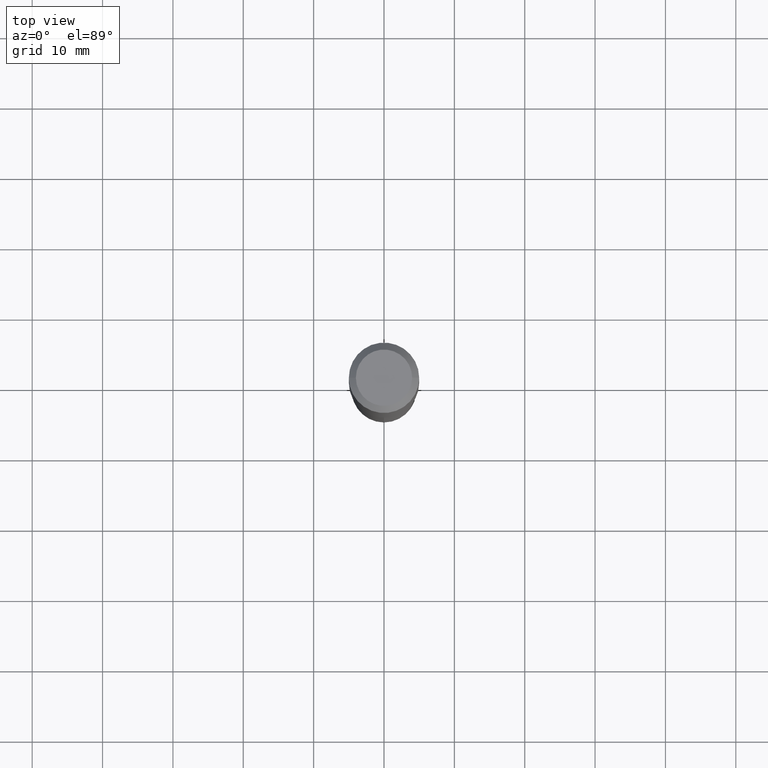
[diagram: clean part render]
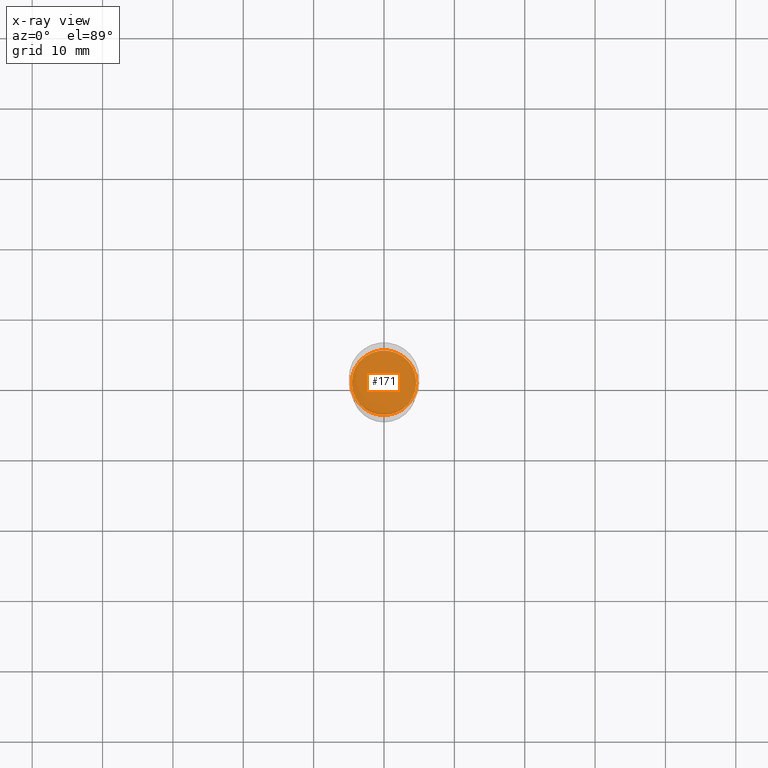
[diagram: x-ray — body ghosted, one internal face saturated and labeled with its STEP entity id]
A machine part, top view, then the same camera in x-ray: the body is ghosted and one INTERNAL B-rep face — a face not visible from any outside direction — is saturated and labeled: STEP entity #171.
In plain terms, the highlighted planar face has unit normal (-0, 0, 1).
Its self-contained STEP definition (entity closure, byte-faithful):
#37 = CARTESIAN_POINT ( 'NONE',  ( 4.043338124146504977E-29, -5.772815245643255982E-15, -1.653399999999999981 ) ) ;
#63 = DIRECTION ( 'NONE',  ( -2.445468806185136597E-29, 3.491481338843145583E-15, 1.000000000000000000 ) ) ;
#106 = AXIS2_PLACEMENT_3D ( 'NONE', #382, #199, #459 ) ;
#113 = EDGE_LOOP ( 'NONE', ( #150, #471 ) ) ;
#114 = CARTESIAN_POINT ( 'NONE',  ( -0.1806000000000000105, -4.486925837686404757E-15, -1.653399999999999981 ) ) ;
#122 = EDGE_CURVE ( 'NONE', #220, #413, #439, .T. ) ;
#140 = DIRECTION ( 'NONE',  ( -2.438088387897960049E-29, 3.491481338843145188E-15, 1.000000000000000000 ) ) ;
#150 = ORIENTED_EDGE ( 'NONE', *, *, #122, .F. ) ;
#171 = ADVANCED_FACE ( 'NONE', ( #376 ), #227, .F. ) ;
#174 = AXIS2_PLACEMENT_3D ( 'NONE', #295, #140, #186 ) ;
#177 = EDGE_CURVE ( 'NONE', #413, #220, #219, .T. ) ;
#186 = DIRECTION ( 'NONE',  ( 1.000000000000000000, -6.982962677686265922E-15, 4.876176775795935793E-29 ) ) ;
#199 = DIRECTION ( 'NONE',  ( -2.445468806185136597E-29, 3.491481338843145583E-15, 1.000000000000000000 ) ) ;
#219 = CIRCLE ( 'NONE', #484, 0.1806000000000000105 ) ;
#220 = VERTEX_POINT ( 'NONE', #489 ) ;
#227 = PLANE ( 'NONE',  #174 ) ;
#258 = DIRECTION ( 'NONE',  ( 1.000000000000000000, -6.982962677686263555E-15, 0.000000000000000000 ) ) ;
#295 = CARTESIAN_POINT ( 'NONE',  ( 2.296886989417275396E-29, -8.273832672401003968E-15, -1.653399999999999981 ) ) ;
#376 = FACE_OUTER_BOUND ( 'NONE', #113, .T. ) ;
#382 = CARTESIAN_POINT ( 'NONE',  ( 4.043338124146504977E-29, -5.772815245643255982E-15, -1.653399999999999981 ) ) ;
#413 = VERTEX_POINT ( 'NONE', #114 ) ;
#439 = CIRCLE ( 'NONE', #106, 0.1806000000000000105 ) ;
#459 = DIRECTION ( 'NONE',  ( 1.000000000000000000, -6.982962677686263555E-15, 0.000000000000000000 ) ) ;
#471 = ORIENTED_EDGE ( 'NONE', *, *, #177, .F. ) ;
#484 = AXIS2_PLACEMENT_3D ( 'NONE', #37, #63, #258 ) ;
#489 = CARTESIAN_POINT ( 'NONE',  ( 0.1806000000000000105, -7.033938305233395914E-15, -1.653399999999999981 ) ) ;